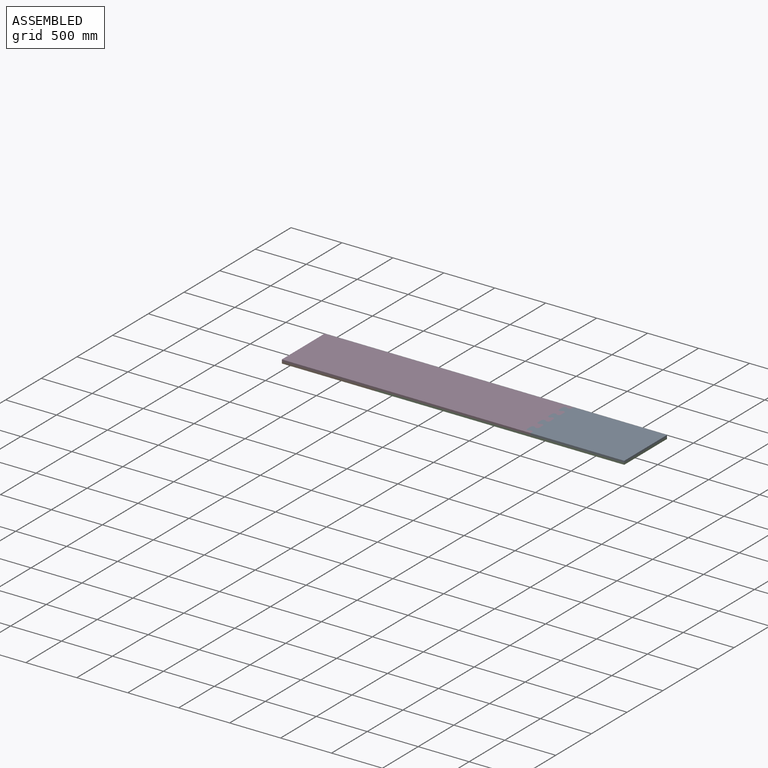
[diagram: assembled view]
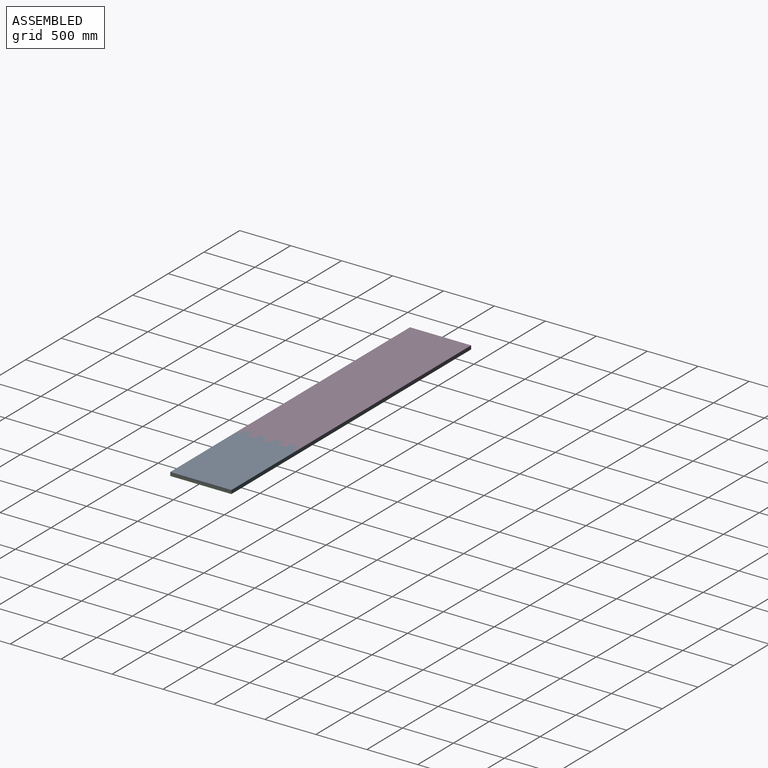
[diagram: assembled view, second angle]
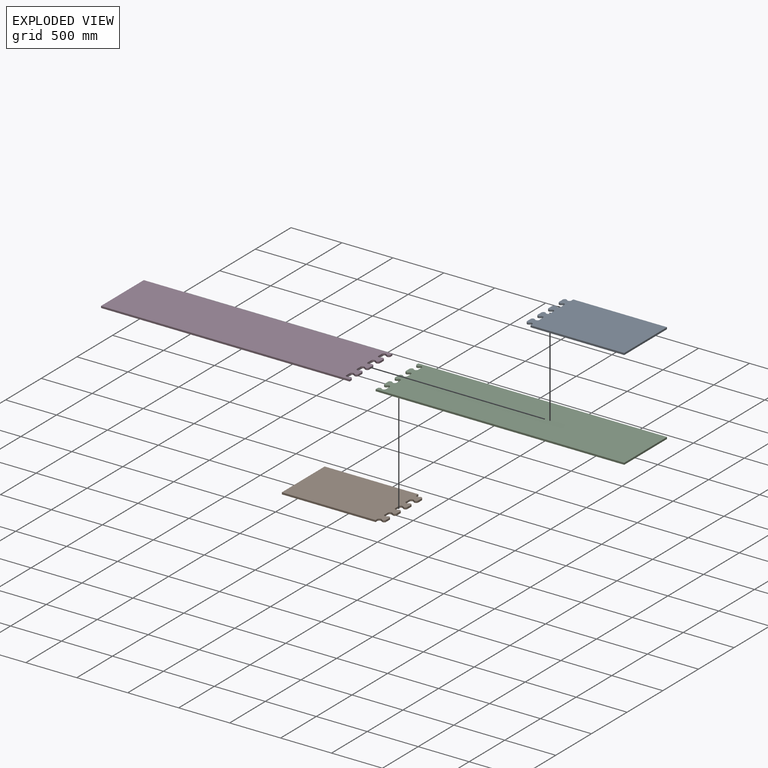
[diagram: exploded view]
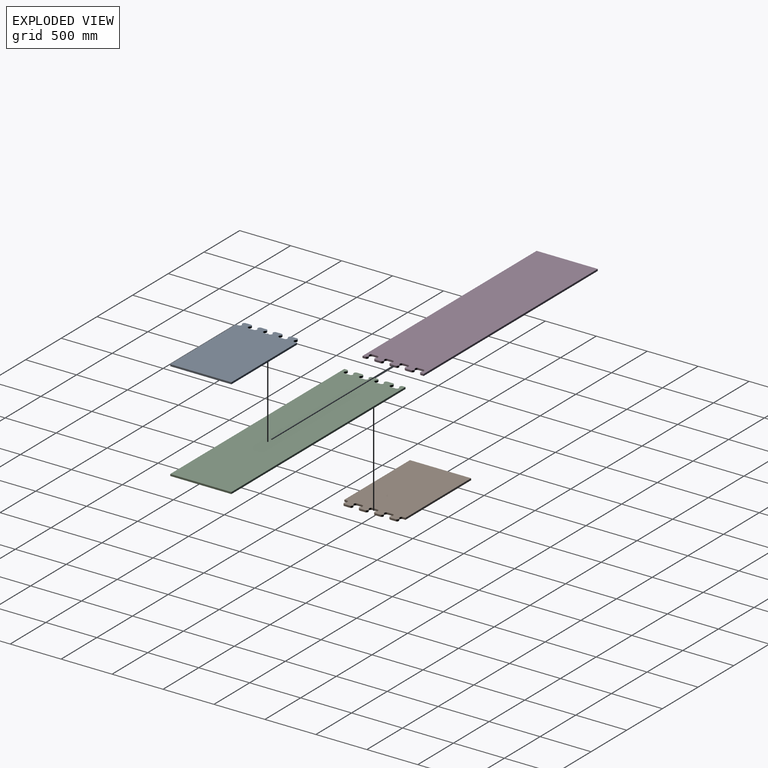
[diagram: exploded view, second angle]
ASSEMBLY  parts=4 mates=3
PART A: 30 faces, bbox 987.9x600x18 mm
  f0: cylinder r=19.28mm len=33.97mm, axis (0,0,-1), area 845.7mm2, adj f1,f27,f28,f29
  f1: plane 50x18mm, normal (1,0,0), area 900mm2, adj f0,f2,f28,f29
  f2: cylinder r=19.28mm len=33.97mm, axis (0,0,-1), area 845.7mm2, adj f1,f3,f28,f29
  f3: cylinder r=19.28mm len=33.97mm, axis (0,0,-1), area 845.7mm2, adj f2,f4,f28,f29
  f4: plane 50x18mm, normal (1,0,0), area 900mm2, adj f3,f5,f28,f29
  f5: cylinder r=19.28mm len=33.97mm, axis (0,0,-1), area 845.7mm2, adj f4,f6,f28,f29
  f6: cylinder r=19.28mm len=33.97mm, axis (0,0,-1), area 845.7mm2, adj f5,f7,f28,f29
  f7: plane 50x18mm, normal (1,0,0), area 900mm2, adj f6,f8,f28,f29
  f8: cylinder r=19.28mm len=33.97mm, axis (0,0,-1), area 845.7mm2, adj f7,f9,f28,f29
  f9: cylinder r=19.28mm len=33.97mm, axis (0,0,-1), area 845.7mm2, adj f8,f10,f28,f29
  f10: plane 50x18mm, normal (1,0,0), area 900mm2, adj f9,f11,f28,f29
  f11: cylinder r=19.28mm len=33.97mm, axis (0,0,-1), area 845.7mm2, adj f10,f12,f28,f29
  f12: cylinder r=19.28mm len=33.97mm, axis (0,0,-1), area 845.7mm2, adj f11,f13,f28,f29
  f13: plane 50x18mm, normal (1,0,0), area 900mm2, adj f12,f14,f28,f29
  f14: cylinder r=19.28mm len=33.97mm, axis (0,0,-1), area 845.7mm2, adj f13,f15,f28,f29
  f15: cylinder r=19.28mm len=33.97mm, axis (0,0,-1), area 845.7mm2, adj f14,f16,f28,f29
  f16: plane 50x18mm, normal (1,0,0), area 900mm2, adj f15,f17,f28,f29
  f17: cylinder r=19.28mm len=33.97mm, axis (0,0,-1), area 845.7mm2, adj f16,f18,f28,f29
  f18: cylinder r=19.28mm len=33.97mm, axis (0,0,-1), area 845.7mm2, adj f17,f19,f28,f29
  f19: plane 50x18mm, normal (1,0,0), area 900mm2, adj f18,f20,f28,f29
  f20: cylinder r=19.28mm len=33.97mm, axis (0,0,-1), area 845.7mm2, adj f19,f21,f28,f29
  f21: cylinder r=19.28mm len=33.97mm, axis (0,0,-1), area 845.7mm2, adj f20,f22,f28,f29
  f22: plane 25x18mm, normal (1,0,0), area 450mm2, adj f21,f23,f28,f29
  f23: plane 920x18mm, normal (0,1,0), area 16560mm2, adj f22,f24,f28,f29
  f24: plane 600x18mm, normal (-1,0,0), area 10800mm2, adj f23,f25,f28,f29
  f25: plane 920x18mm, normal (0,-1,0), area 16560mm2, adj f24,f26,f28,f29
  f26: plane 25x18mm, normal (1,0,0), area 450mm2, adj f25,f27,f28,f29
  f27: cylinder r=19.28mm len=33.97mm, axis (0,0,-1), area 845.7mm2, adj f0,f26,f28,f29
  f28: plane 987.94x600mm, normal (0,0,1), area 572380.8mm2, adj f0,f1,f2,f3,f4,f5,f6,f7
  f29: plane 987.94x600mm, normal (0,0,-1), area 572380.8mm2, adj f0,f1,f2,f3,f4,f5,f6,f7
PART B: same geometry as A
PART C: 30 faces, bbox 2440x600x18 mm
  f0: plane 50x18mm, normal (-1,0,0), area 900mm2, adj f1,f27,f28,f29
  f1: cylinder r=19.28mm len=33.97mm, axis (0,0,-1), area 845.7mm2, adj f0,f2,f28,f29
  f2: cylinder r=19.28mm len=33.97mm, axis (0,0,-1), area 845.7mm2, adj f1,f3,f28,f29
  f3: plane 25x18mm, normal (-1,0,0), area 450mm2, adj f2,f4,f28,f29
  f4: plane 2440x18mm, normal (0,-1,0), area 43920mm2, adj f3,f5,f28,f29
  f5: plane 600x18mm, normal (1,0,0), area 10800mm2, adj f4,f6,f28,f29
  f6: plane 2440x18mm, normal (0,1,0), area 43920mm2, adj f5,f7,f28,f29
  f7: plane 25x18mm, normal (-1,0,0), area 450mm2, adj f6,f8,f28,f29
  f8: cylinder r=19.28mm len=33.97mm, axis (0,0,-1), area 845.7mm2, adj f7,f9,f28,f29
  f9: cylinder r=19.28mm len=33.97mm, axis (0,0,-1), area 845.7mm2, adj f8,f10,f28,f29
  f10: plane 50x18mm, normal (-1,0,0), area 900mm2, adj f9,f11,f28,f29
  f11: cylinder r=19.28mm len=33.97mm, axis (0,0,-1), area 845.7mm2, adj f10,f12,f28,f29
  f12: cylinder r=19.28mm len=33.97mm, axis (0,0,-1), area 845.7mm2, adj f11,f13,f28,f29
  f13: plane 50x18mm, normal (-1,0,0), area 900mm2, adj f12,f14,f28,f29
  f14: cylinder r=19.28mm len=33.97mm, axis (0,0,-1), area 845.7mm2, adj f13,f15,f28,f29
  f15: cylinder r=19.28mm len=33.97mm, axis (0,0,-1), area 845.7mm2, adj f14,f16,f28,f29
  f16: plane 50x18mm, normal (-1,0,0), area 900mm2, adj f15,f17,f28,f29
  f17: cylinder r=19.28mm len=33.97mm, axis (0,0,-1), area 845.7mm2, adj f16,f18,f28,f29
  f18: cylinder r=19.28mm len=33.97mm, axis (0,0,-1), area 845.7mm2, adj f17,f19,f28,f29
  f19: plane 50x18mm, normal (-1,0,0), area 900mm2, adj f18,f20,f28,f29
  f20: cylinder r=19.28mm len=33.97mm, axis (0,0,-1), area 845.7mm2, adj f19,f21,f28,f29
  f21: cylinder r=19.28mm len=33.97mm, axis (0,0,-1), area 845.7mm2, adj f20,f22,f28,f29
  f22: plane 50x18mm, normal (-1,0,0), area 900mm2, adj f21,f23,f28,f29
  f23: cylinder r=19.28mm len=33.97mm, axis (0,0,-1), area 845.7mm2, adj f22,f24,f28,f29
  f24: cylinder r=19.28mm len=33.97mm, axis (0,0,-1), area 845.7mm2, adj f23,f25,f28,f29
  f25: plane 50x18mm, normal (-1,0,0), area 900mm2, adj f24,f26,f28,f29
  f26: cylinder r=19.28mm len=33.97mm, axis (0,0,-1), area 845.7mm2, adj f25,f27,f28,f29
  f27: cylinder r=19.28mm len=33.97mm, axis (0,0,-1), area 845.7mm2, adj f0,f26,f28,f29
  f28: plane 2440x600mm, normal (0,0,1), area 1443619.2mm2, adj f0,f1,f2,f3,f4,f5,f6,f7
  f29: plane 2440x600mm, normal (0,0,-1), area 1443619.2mm2, adj f0,f1,f2,f3,f4,f5,f6,f7
PART D: same geometry as C
PLACE A rot(axis=(0,0,1),180deg) t=(116.73,690.64,18)mm fixed
PLACE B t=(1069.43,-666.57,0)mm fixed
PLACE C rot(axis=(0,0,-1),0deg) t=(1069.43,-666.57,0)mm
PLACE D rot(axis=(0,0,1),180deg) t=(116.73,690.64,18)mm
MATE fastened B.f28 <-> D.f29  axis (0,0,1) through (-1086.92,312.04,18)mm
MATE fastened A.f1 <-> D.f0  axis (-1,0,0) through (1285.15,237.04,27)mm
MATE fastened A.f29 <-> C.f28  axis (0,0,-1) through (2273.08,-287.96,18)mm
